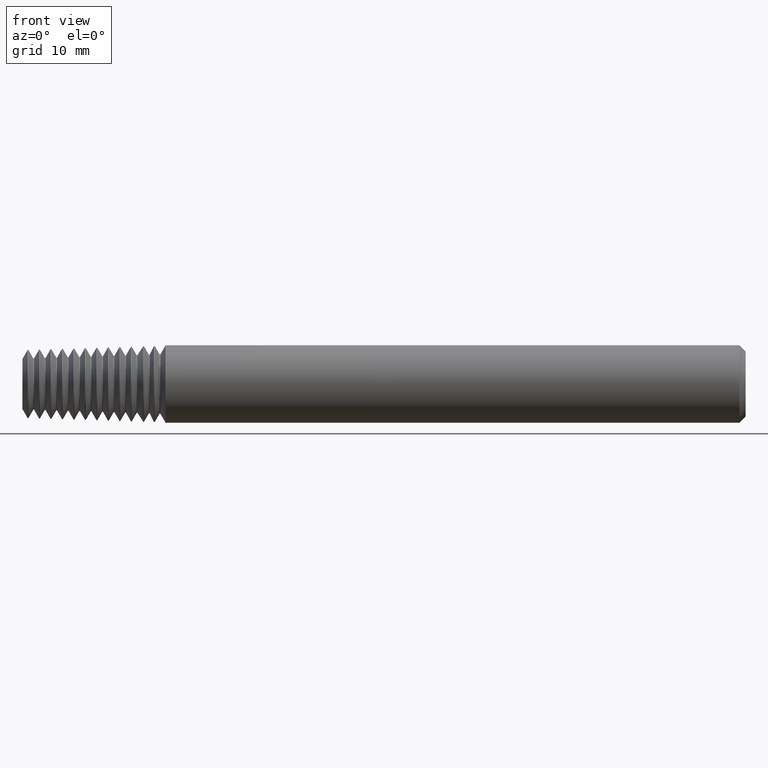
[diagram: clean part render]
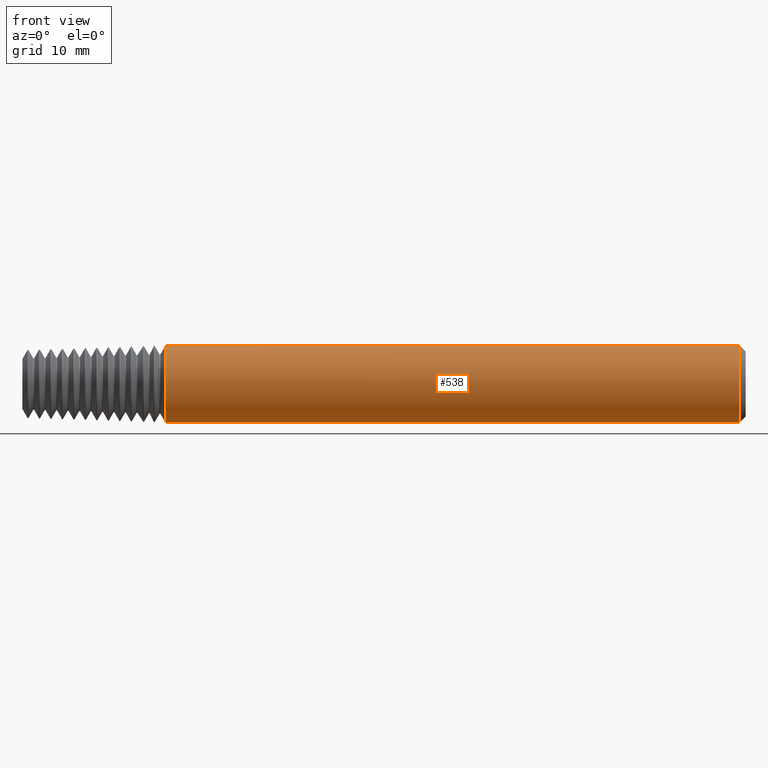
[diagram: same view with one face highlighted and labeled with its STEP entity id]
A machine part, front view. The second image highlights one B-rep face of the part: STEP entity #538.
In plain terms, the highlighted cylindrical surface (partial cylindrical patch) has radius 4.7587 mm, axis along (1, 0, 0).
Its self-contained STEP definition (entity closure, byte-faithful):
#121 = VECTOR ( 'NONE', #2622, 39.37007874015748143 ) ;
#212 = CARTESIAN_POINT ( 'NONE',  ( -1.500000000000000222, 0.0000000000000000000, 0.0000000000000000000 ) ) ;
#269 = CARTESIAN_POINT ( 'NONE',  ( -0.8070851391175091205, 2.294375778202565406E-17, 0.1873499999999999888 ) ) ;
#301 = DIRECTION ( 'NONE',  ( 1.000000000000000000, 0.0000000000000000000, 0.0000000000000000000 ) ) ;
#456 = CARTESIAN_POINT ( 'NONE',  ( 1.969999999999997531, 0.0000000000000000000, -0.1873499999999999888 ) ) ;
#520 = CARTESIAN_POINT ( 'NONE',  ( -1.500000000000000222, 2.294375778202565406E-17, 0.1873499999999999888 ) ) ;
#538 = ADVANCED_FACE ( 'NONE', ( #1102 ), #1885, .T. ) ;
#669 = VERTEX_POINT ( 'NONE', #924 ) ;
#710 = LINE ( 'NONE', #520, #121 ) ;
#758 = EDGE_CURVE ( 'NONE', #2000, #2610, #710, .T. ) ;
#774 = EDGE_CURVE ( 'NONE', #669, #1874, #2359, .T. ) ;
#838 = CIRCLE ( 'NONE', #1162, 0.1873499999999999888 ) ;
#924 = CARTESIAN_POINT ( 'NONE',  ( -0.8070851391175091205, 0.0000000000000000000, -0.1873499999999999888 ) ) ;
#1011 = CARTESIAN_POINT ( 'NONE',  ( 1.969999999999997531, 2.294375778202565406E-17, 0.1873499999999999888 ) ) ;
#1068 = EDGE_CURVE ( 'NONE', #669, #2000, #838, .T. ) ;
#1102 = FACE_OUTER_BOUND ( 'NONE', #2106, .T. ) ;
#1162 = AXIS2_PLACEMENT_3D ( 'NONE', #1984, #2196, #2410 ) ;
#1165 = CIRCLE ( 'NONE', #1640, 0.1873499999999999888 ) ;
#1297 = DIRECTION ( 'NONE',  ( 0.0000000000000000000, 0.0000000000000000000, -1.000000000000000000 ) ) ;
#1359 = EDGE_CURVE ( 'NONE', #1874, #2610, #1165, .T. ) ;
#1379 = AXIS2_PLACEMENT_3D ( 'NONE', #212, #2350, #2132 ) ;
#1640 = AXIS2_PLACEMENT_3D ( 'NONE', #1916, #1711, #1297 ) ;
#1673 = ORIENTED_EDGE ( 'NONE', *, *, #1359, .T. ) ;
#1711 = DIRECTION ( 'NONE',  ( -1.000000000000000000, -0.0000000000000000000, -0.0000000000000000000 ) ) ;
#1874 = VERTEX_POINT ( 'NONE', #456 ) ;
#1885 = CYLINDRICAL_SURFACE ( 'NONE', #1379, 0.1873499999999999888 ) ;
#1898 = VECTOR ( 'NONE', #301, 39.37007874015748143 ) ;
#1916 = CARTESIAN_POINT ( 'NONE',  ( 1.969999999999997531, 0.0000000000000000000, 0.0000000000000000000 ) ) ;
#1965 = ORIENTED_EDGE ( 'NONE', *, *, #774, .T. ) ;
#1984 = CARTESIAN_POINT ( 'NONE',  ( -0.8070851391175091205, 0.0000000000000000000, 0.0000000000000000000 ) ) ;
#2000 = VERTEX_POINT ( 'NONE', #269 ) ;
#2106 = EDGE_LOOP ( 'NONE', ( #2119, #2607, #1965, #1673 ) ) ;
#2119 = ORIENTED_EDGE ( 'NONE', *, *, #758, .F. ) ;
#2132 = DIRECTION ( 'NONE',  ( 0.0000000000000000000, 0.0000000000000000000, -1.000000000000000000 ) ) ;
#2196 = DIRECTION ( 'NONE',  ( -1.000000000000000000, -0.0000000000000000000, -0.0000000000000000000 ) ) ;
#2350 = DIRECTION ( 'NONE',  ( 1.000000000000000000, 0.0000000000000000000, 0.0000000000000000000 ) ) ;
#2359 = LINE ( 'NONE', #2399, #1898 ) ;
#2399 = CARTESIAN_POINT ( 'NONE',  ( -1.500000000000000222, 0.0000000000000000000, -0.1873499999999999888 ) ) ;
#2410 = DIRECTION ( 'NONE',  ( 0.0000000000000000000, 0.0000000000000000000, -1.000000000000000000 ) ) ;
#2607 = ORIENTED_EDGE ( 'NONE', *, *, #1068, .F. ) ;
#2610 = VERTEX_POINT ( 'NONE', #1011 ) ;
#2622 = DIRECTION ( 'NONE',  ( 1.000000000000000000, 0.0000000000000000000, 0.0000000000000000000 ) ) ;